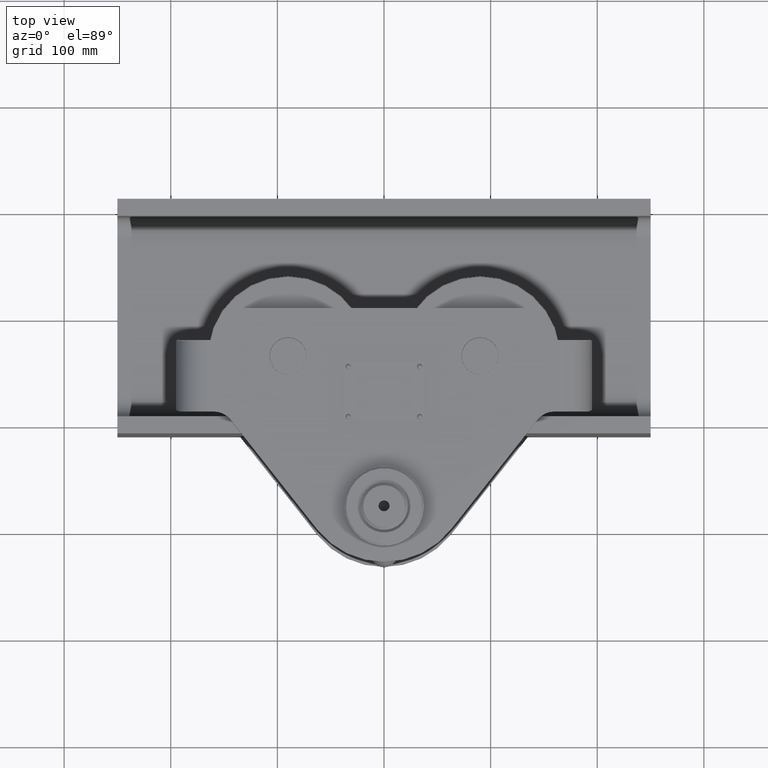
[diagram: clean part render]
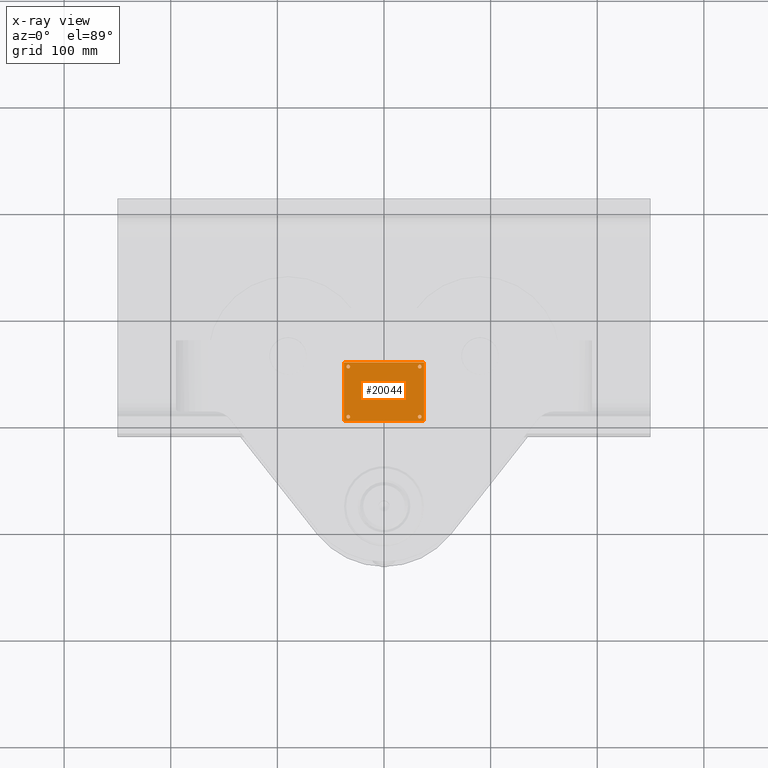
[diagram: x-ray — body ghosted, one internal face saturated and labeled with its STEP entity id]
A machine part, top view, then the same camera in x-ray: the body is ghosted and one INTERNAL B-rep face — a face not visible from any outside direction — is saturated and labeled: STEP entity #20044.
In plain terms, the highlighted planar face has unit normal (0, 0, -1).
Its self-contained STEP definition (entity closure, byte-faithful):
#546 = AXIS2_PLACEMENT_3D ( 'NONE', #7908, #11507, #8054 ) ;
#612 = LINE ( 'NONE', #14805, #3138 ) ;
#618 = DIRECTION ( 'NONE',  ( 1.000000000000000000, 0.0000000000000000000, 0.0000000000000000000 ) ) ;
#1814 = DIRECTION ( 'NONE',  ( 0.0000000000000000000, 0.0000000000000000000, 1.000000000000000000 ) ) ;
#2506 = AXIS2_PLACEMENT_3D ( 'NONE', #16916, #20129, #618 ) ;
#3030 = EDGE_LOOP ( 'NONE', ( #9949, #4919 ) ) ;
#3138 = VECTOR ( 'NONE', #18194, 1000.000000000000000 ) ;
#3287 = ORIENTED_EDGE ( 'NONE', *, *, #3994, .T. ) ;
#3475 = VERTEX_POINT ( 'NONE', #35001 ) ;
#3499 = EDGE_CURVE ( 'NONE', #15973, #15118, #41276, .T. ) ;
#3720 = AXIS2_PLACEMENT_3D ( 'NONE', #9583, #16340, #23080 ) ;
#3994 = EDGE_CURVE ( 'NONE', #15118, #15973, #9565, .T. ) ;
#4919 = ORIENTED_EDGE ( 'NONE', *, *, #18562, .T. ) ;
#5343 = EDGE_CURVE ( 'NONE', #39014, #32637, #15328, .T. ) ;
#5705 = CIRCLE ( 'NONE', #3720, 1.749999999999994700 ) ;
#6263 = EDGE_LOOP ( 'NONE', ( #16748, #34278, #23510, #41409 ) ) ;
#7183 = DIRECTION ( 'NONE',  ( 1.000000000000000000, 0.0000000000000000000, 0.0000000000000000000 ) ) ;
#7322 = CARTESIAN_POINT ( 'NONE',  ( 33.50000000000000000, -94.99999999999984400, 140.0000000000000000 ) ) ;
#7473 = AXIS2_PLACEMENT_3D ( 'NONE', #14158, #17463, #37060 ) ;
#7908 = CARTESIAN_POINT ( 'NONE',  ( -33.50000000000000000, -94.99999999999984400, 140.0000000000000000 ) ) ;
#8054 = DIRECTION ( 'NONE',  ( 1.000000000000000000, 0.0000000000000000000, 0.0000000000000000000 ) ) ;
#8772 = DIRECTION ( 'NONE',  ( 1.000000000000000000, 0.0000000000000000000, 0.0000000000000000000 ) ) ;
#9427 = DIRECTION ( 'NONE',  ( 0.0000000000000000000, 0.0000000000000000000, 1.000000000000000000 ) ) ;
#9565 = CIRCLE ( 'NONE', #7473, 1.750000000000001600 ) ;
#9583 = CARTESIAN_POINT ( 'NONE',  ( 33.50000000000000000, -94.99999999999984400, 140.0000000000000000 ) ) ;
#9686 = DIRECTION ( 'NONE',  ( 0.0000000000000000000, 0.0000000000000000000, 1.000000000000000000 ) ) ;
#9949 = ORIENTED_EDGE ( 'NONE', *, *, #15923, .T. ) ;
#10188 = FACE_BOUND ( 'NONE', #36656, .T. ) ;
#10522 = VECTOR ( 'NONE', #10537, 1000.000000000000000 ) ;
#10537 = DIRECTION ( 'NONE',  ( -1.000000000000000000, -0.0000000000000000000, -0.0000000000000000000 ) ) ;
#10607 = CARTESIAN_POINT ( 'NONE',  ( -35.25000000000000000, -94.99999999999984400, 140.0000000000000000 ) ) ;
#10672 = FACE_BOUND ( 'NONE', #29711, .T. ) ;
#10905 = CIRCLE ( 'NONE', #35939, 1.750000000000001600 ) ;
#11350 = CARTESIAN_POINT ( 'NONE',  ( -35.25000000000000000, -47.99999999999985100, 140.0000000000000000 ) ) ;
#11507 = DIRECTION ( 'NONE',  ( 0.0000000000000000000, 0.0000000000000000000, 1.000000000000000000 ) ) ;
#12629 = LINE ( 'NONE', #18503, #26301 ) ;
#12901 = CARTESIAN_POINT ( 'NONE',  ( -33.50000000000000000, -94.99999999999984400, 140.0000000000000000 ) ) ;
#13310 = CARTESIAN_POINT ( 'NONE',  ( -37.50000000000000700, -98.99999999999985800, 140.0000000000000000 ) ) ;
#13597 = VERTEX_POINT ( 'NONE', #10607 ) ;
#13739 = AXIS2_PLACEMENT_3D ( 'NONE', #28255, #1814, #8772 ) ;
#14158 = CARTESIAN_POINT ( 'NONE',  ( -33.50000000000000000, -47.99999999999985100, 140.0000000000000000 ) ) ;
#14805 = CARTESIAN_POINT ( 'NONE',  ( -37.50000000000000700, -98.99999999999985800, 140.0000000000000000 ) ) ;
#14821 = CARTESIAN_POINT ( 'NONE',  ( 37.50000000000000700, -98.99999999999985800, 140.0000000000000000 ) ) ;
#15118 = VERTEX_POINT ( 'NONE', #11350 ) ;
#15328 = CIRCLE ( 'NONE', #21742, 1.749999999999994700 ) ;
#15604 = VERTEX_POINT ( 'NONE', #18850 ) ;
#15923 = EDGE_CURVE ( 'NONE', #15604, #13597, #37260, .T. ) ;
#15973 = VERTEX_POINT ( 'NONE', #34361 ) ;
#16247 = VERTEX_POINT ( 'NONE', #31910 ) ;
#16340 = DIRECTION ( 'NONE',  ( 0.0000000000000000000, 0.0000000000000000000, 1.000000000000000000 ) ) ;
#16388 = CARTESIAN_POINT ( 'NONE',  ( -37.50000000000000700, -43.99999999999985100, 140.0000000000000000 ) ) ;
#16653 = ORIENTED_EDGE ( 'NONE', *, *, #5343, .T. ) ;
#16748 = ORIENTED_EDGE ( 'NONE', *, *, #40702, .F. ) ;
#16916 = CARTESIAN_POINT ( 'NONE',  ( 33.50000000000000000, -47.99999999999985100, 140.0000000000000000 ) ) ;
#17013 = CARTESIAN_POINT ( 'NONE',  ( 31.75000000000000700, -47.99999999999985100, 140.0000000000000000 ) ) ;
#17463 = DIRECTION ( 'NONE',  ( 0.0000000000000000000, 0.0000000000000000000, 1.000000000000000000 ) ) ;
#18194 = DIRECTION ( 'NONE',  ( -0.0000000000000000000, -1.000000000000000000, -0.0000000000000000000 ) ) ;
#18503 = CARTESIAN_POINT ( 'NONE',  ( 37.50000000000000700, -98.99999999999985800, 140.0000000000000000 ) ) ;
#18562 = EDGE_CURVE ( 'NONE', #13597, #15604, #10905, .T. ) ;
#18850 = CARTESIAN_POINT ( 'NONE',  ( -31.75000000000000000, -94.99999999999984400, 140.0000000000000000 ) ) ;
#19667 = ORIENTED_EDGE ( 'NONE', *, *, #21511, .T. ) ;
#19883 = FACE_BOUND ( 'NONE', #21670, .T. ) ;
#20044 = ADVANCED_FACE ( 'NONE', ( #10188, #22378, #19883, #10672, #26443 ), #35702, .T. ) ;
#20129 = DIRECTION ( 'NONE',  ( 0.0000000000000000000, 0.0000000000000000000, 1.000000000000000000 ) ) ;
#21511 = EDGE_CURVE ( 'NONE', #32637, #39014, #5705, .T. ) ;
#21615 = AXIS2_PLACEMENT_3D ( 'NONE', #22352, #9686, #26001 ) ;
#21670 = EDGE_LOOP ( 'NONE', ( #34758, #31492 ) ) ;
#21742 = AXIS2_PLACEMENT_3D ( 'NONE', #7322, #30095, #7183 ) ;
#21933 = CIRCLE ( 'NONE', #2506, 1.749999999999994700 ) ;
#22352 = CARTESIAN_POINT ( 'NONE',  ( -33.50000000000000000, -47.99999999999985100, 140.0000000000000000 ) ) ;
#22378 = FACE_BOUND ( 'NONE', #3030, .T. ) ;
#22412 = DIRECTION ( 'NONE',  ( 1.000000000000000000, 0.0000000000000000000, 0.0000000000000000000 ) ) ;
#22772 = DIRECTION ( 'NONE',  ( 0.0000000000000000000, 0.0000000000000000000, -1.000000000000000000 ) ) ;
#23080 = DIRECTION ( 'NONE',  ( 1.000000000000000000, 0.0000000000000000000, 0.0000000000000000000 ) ) ;
#23445 = LINE ( 'NONE', #28826, #39238 ) ;
#23510 = ORIENTED_EDGE ( 'NONE', *, *, #33819, .F. ) ;
#23760 = CARTESIAN_POINT ( 'NONE',  ( -37.50000000000000700, -43.99999999999985100, 140.0000000000000000 ) ) ;
#26001 = DIRECTION ( 'NONE',  ( 1.000000000000000000, 0.0000000000000000000, 0.0000000000000000000 ) ) ;
#26301 = VECTOR ( 'NONE', #35083, 1000.000000000000000 ) ;
#26443 = FACE_OUTER_BOUND ( 'NONE', #6263, .T. ) ;
#27134 = VERTEX_POINT ( 'NONE', #13310 ) ;
#27264 = EDGE_CURVE ( 'NONE', #28095, #3475, #32084, .T. ) ;
#27298 = EDGE_CURVE ( 'NONE', #27134, #32477, #23445, .T. ) ;
#28095 = VERTEX_POINT ( 'NONE', #17013 ) ;
#28107 = EDGE_CURVE ( 'NONE', #16247, #41236, #28355, .T. ) ;
#28255 = CARTESIAN_POINT ( 'NONE',  ( 33.50000000000000000, -47.99999999999985100, 140.0000000000000000 ) ) ;
#28355 = LINE ( 'NONE', #23760, #10522 ) ;
#28826 = CARTESIAN_POINT ( 'NONE',  ( -37.50000000000000700, -98.99999999999985800, 140.0000000000000000 ) ) ;
#29076 = DIRECTION ( 'NONE',  ( 1.000000000000000000, 0.0000000000000000000, 0.0000000000000000000 ) ) ;
#29315 = DIRECTION ( 'NONE',  ( -1.000000000000000000, 0.0000000000000000000, -0.0000000000000000000 ) ) ;
#29520 = CARTESIAN_POINT ( 'NONE',  ( 31.75000000000000700, -94.99999999999984400, 140.0000000000000000 ) ) ;
#29711 = EDGE_LOOP ( 'NONE', ( #40996, #3287 ) ) ;
#30095 = DIRECTION ( 'NONE',  ( 0.0000000000000000000, 0.0000000000000000000, 1.000000000000000000 ) ) ;
#30904 = AXIS2_PLACEMENT_3D ( 'NONE', #42256, #22772, #29315 ) ;
#31492 = ORIENTED_EDGE ( 'NONE', *, *, #27264, .T. ) ;
#31910 = CARTESIAN_POINT ( 'NONE',  ( 37.50000000000000700, -43.99999999999985100, 140.0000000000000000 ) ) ;
#32084 = CIRCLE ( 'NONE', #13739, 1.749999999999994700 ) ;
#32477 = VERTEX_POINT ( 'NONE', #14821 ) ;
#32637 = VERTEX_POINT ( 'NONE', #29520 ) ;
#33819 = EDGE_CURVE ( 'NONE', #32477, #16247, #12629, .T. ) ;
#34278 = ORIENTED_EDGE ( 'NONE', *, *, #28107, .F. ) ;
#34361 = CARTESIAN_POINT ( 'NONE',  ( -31.75000000000000000, -47.99999999999985100, 140.0000000000000000 ) ) ;
#34758 = ORIENTED_EDGE ( 'NONE', *, *, #40955, .T. ) ;
#35001 = CARTESIAN_POINT ( 'NONE',  ( 35.25000000000000000, -47.99999999999985100, 140.0000000000000000 ) ) ;
#35083 = DIRECTION ( 'NONE',  ( 0.0000000000000000000, 1.000000000000000000, 0.0000000000000000000 ) ) ;
#35702 = PLANE ( 'NONE',  #30904 ) ;
#35939 = AXIS2_PLACEMENT_3D ( 'NONE', #12901, #9427, #29076 ) ;
#36656 = EDGE_LOOP ( 'NONE', ( #16653, #19667 ) ) ;
#37060 = DIRECTION ( 'NONE',  ( 1.000000000000000000, 0.0000000000000000000, 0.0000000000000000000 ) ) ;
#37260 = CIRCLE ( 'NONE', #546, 1.750000000000001600 ) ;
#38787 = CARTESIAN_POINT ( 'NONE',  ( 35.25000000000000000, -94.99999999999984400, 140.0000000000000000 ) ) ;
#39014 = VERTEX_POINT ( 'NONE', #38787 ) ;
#39238 = VECTOR ( 'NONE', #22412, 1000.000000000000000 ) ;
#40702 = EDGE_CURVE ( 'NONE', #41236, #27134, #612, .T. ) ;
#40955 = EDGE_CURVE ( 'NONE', #3475, #28095, #21933, .T. ) ;
#40996 = ORIENTED_EDGE ( 'NONE', *, *, #3499, .T. ) ;
#41236 = VERTEX_POINT ( 'NONE', #16388 ) ;
#41276 = CIRCLE ( 'NONE', #21615, 1.750000000000001600 ) ;
#41409 = ORIENTED_EDGE ( 'NONE', *, *, #27298, .F. ) ;
#42256 = CARTESIAN_POINT ( 'NONE',  ( -37.50000000000000700, -43.99999999999985100, 140.0000000000000000 ) ) ;